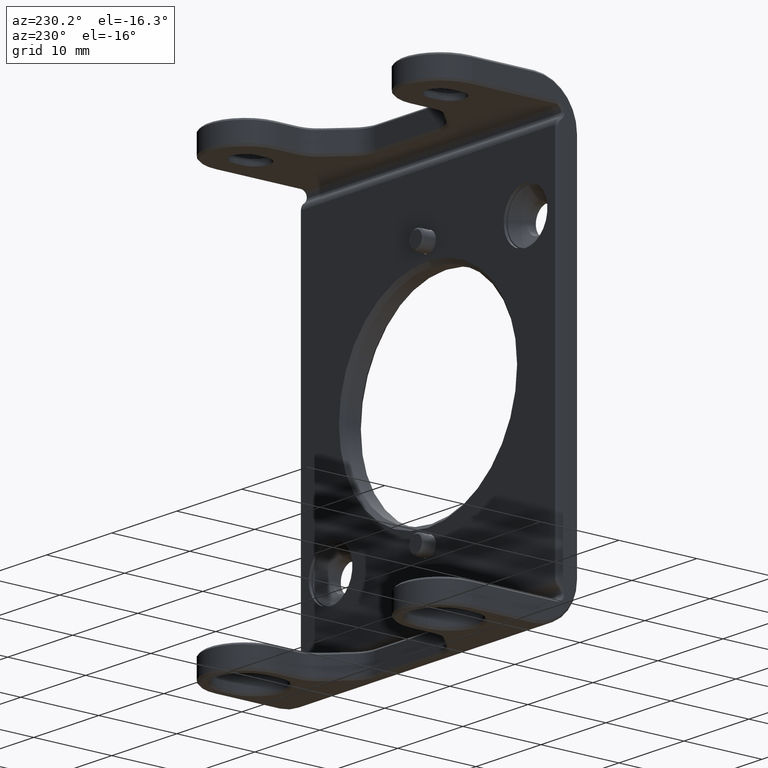
[diagram: clean part render]
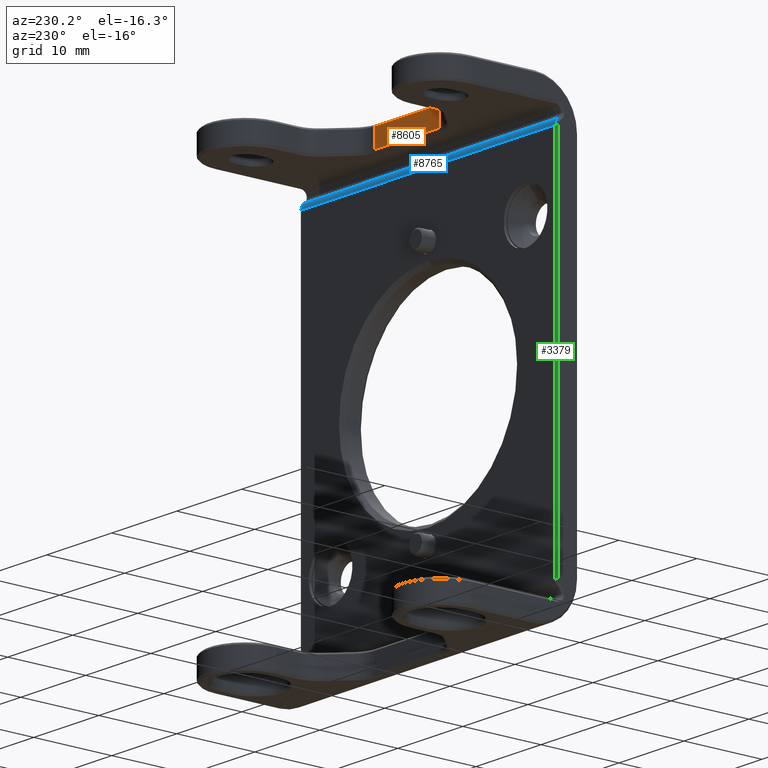
[diagram: same view with three faces highlighted in distinct colors, each labeled with its STEP entity id]
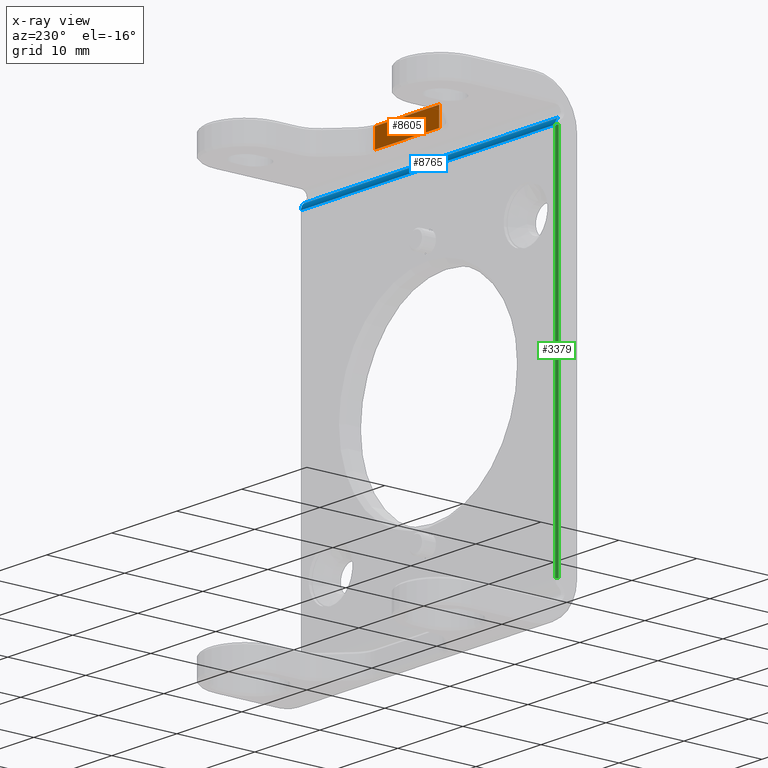
[diagram: x-ray of the same camera — body ghosted, the three highlighted faces saturated]
A machine part, auxiliary view with three faces highlighted in distinct colors.
The next image is the same camera in x-ray (body ghosted, the three faces saturated) — at least one of them is partly hidden behind the body in this view.
Their STEP definitions:

[orange] entity #8605 — the highlighted planar face has unit normal (-0, 1, 0).
#653 = CARTESIAN_POINT ( 'NONE',  ( 4.957359312880705637, 5.499999999999996447, 25.44999999999998508 ) ) ;
#764 = DIRECTION ( 'NONE',  ( 1.000000000000000000, 0.000000000000000000, 0.000000000000000000 ) ) ;
#902 = LINE ( 'NONE', #4946, #7934 ) ;
#1138 = DIRECTION ( 'NONE',  ( 0.000000000000000000, -0.000000000000000000, 1.000000000000000000 ) ) ;
#1209 = VECTOR ( 'NONE', #764, 1000.000000000000000 ) ;
#1445 = CARTESIAN_POINT ( 'NONE',  ( -6.199999999999996625, 5.499999999999996447, 28.09404424085075291 ) ) ;
#2117 = EDGE_CURVE ( 'NONE', #3785, #2198, #3284, .T. ) ;
#2198 = VERTEX_POINT ( 'NONE', #3228 ) ;
#2285 = VERTEX_POINT ( 'NONE', #8745 ) ;
#2562 = ORIENTED_EDGE ( 'NONE', *, *, #5153, .T. ) ;
#2987 = EDGE_LOOP ( 'NONE', ( #2562, #6673, #6406, #7555 ) ) ;
#3039 = EDGE_CURVE ( 'NONE', #2285, #3785, #8658, .T. ) ;
#3228 = CARTESIAN_POINT ( 'NONE',  ( -4.957359312880709190, 5.499999999999996447, 25.69999999999999929 ) ) ;
#3284 = LINE ( 'NONE', #6542, #4862 ) ;
#3504 = DIRECTION ( 'NONE',  ( 0.000000000000000000, -0.000000000000000000, 1.000000000000000000 ) ) ;
#3785 = VERTEX_POINT ( 'NONE', #4060 ) ;
#3867 = VECTOR ( 'NONE', #5380, 1000.000000000000000 ) ;
#4060 = CARTESIAN_POINT ( 'NONE',  ( 4.957359312880705637, 5.499999999999996447, 25.69999999999999929 ) ) ;
#4521 = VERTEX_POINT ( 'NONE', #8618 ) ;
#4578 = DIRECTION ( 'NONE',  ( -0.000000000000000000, 1.000000000000000000, 0.000000000000000000 ) ) ;
#4805 = LINE ( 'NONE', #1445, #1209 ) ;
#4862 = VECTOR ( 'NONE', #7207, 1000.000000000000000 ) ;
#4946 = CARTESIAN_POINT ( 'NONE',  ( -4.957359312880709190, 5.499999999999996447, 28.35000000000000142 ) ) ;
#5153 = EDGE_CURVE ( 'NONE', #2198, #4521, #902, .T. ) ;
#5380 = DIRECTION ( 'NONE',  ( -0.000000000000000000, 0.000000000000000000, -1.000000000000000000 ) ) ;
#5770 = AXIS2_PLACEMENT_3D ( 'NONE', #8696, #4578, #1138 ) ;
#6406 = ORIENTED_EDGE ( 'NONE', *, *, #3039, .T. ) ;
#6542 = CARTESIAN_POINT ( 'NONE',  ( -4.957359312880709190, 5.499999999999996447, 25.69999999999999929 ) ) ;
#6673 = ORIENTED_EDGE ( 'NONE', *, *, #7517, .T. ) ;
#6928 = FACE_OUTER_BOUND ( 'NONE', #2987, .T. ) ;
#7207 = DIRECTION ( 'NONE',  ( -1.000000000000000000, 0.000000000000000000, -0.000000000000000000 ) ) ;
#7517 = EDGE_CURVE ( 'NONE', #4521, #2285, #4805, .T. ) ;
#7555 = ORIENTED_EDGE ( 'NONE', *, *, #2117, .T. ) ;
#7790 = PLANE ( 'NONE',  #5770 ) ;
#7934 = VECTOR ( 'NONE', #3504, 1000.000000000000000 ) ;
#8605 = ADVANCED_FACE ( 'NONE', ( #6928 ), #7790, .T. ) ;
#8618 = CARTESIAN_POINT ( 'NONE',  ( -4.957359312880709190, 5.499999999999996447, 28.09404424085075647 ) ) ;
#8658 = LINE ( 'NONE', #653, #3867 ) ;
#8696 = CARTESIAN_POINT ( 'NONE',  ( -6.199999999999996625, 5.499999999999996447, -28.35000000000000142 ) ) ;
#8745 = CARTESIAN_POINT ( 'NONE',  ( 4.957359312880705637, 5.499999999999996447, 28.09404424085075291 ) ) ;

[blue] entity #8765 — the highlighted cylindrical surface (edge-blend (fillet) strip) has radius 1 mm, axis along (1, -0, -0).
#70 = DIRECTION ( 'NONE',  ( 0.000000000000000000, -2.602085213965208275E-15, 1.000000000000000000 ) ) ;
#625 = ORIENTED_EDGE ( 'NONE', *, *, #8179, .F. ) ;
#880 = EDGE_CURVE ( 'NONE', #1957, #2851, #6881, .T. ) ;
#1010 = EDGE_CURVE ( 'NONE', #1560, #2851, #4738, .T. ) ;
#1090 = CARTESIAN_POINT ( 'NONE',  ( -19.80000000000000071, 2.371428571428565224, 24.08451114501378143 ) ) ;
#1290 = CARTESIAN_POINT ( 'NONE',  ( 19.55000000000000782, 1.799999999999994715, 23.26385933836548858 ) ) ;
#1318 = DIRECTION ( 'NONE',  ( 0.000000000000000000, 0.000000000000000000, 1.000000000000000000 ) ) ;
#1560 = VERTEX_POINT ( 'NONE', #3034 ) ;
#1757 = EDGE_LOOP ( 'NONE', ( #8750, #5421, #625, #4284 ) ) ;
#1832 = DIRECTION ( 'NONE',  ( 1.000000000000000000, 0.000000000000000000, 0.000000000000000000 ) ) ;
#1957 = VERTEX_POINT ( 'NONE', #7686 ) ;
#2056 = DIRECTION ( 'NONE',  ( 0.000000000000000000, 0.000000000000000000, -1.000000000000000000 ) ) ;
#2104 = VECTOR ( 'NONE', #1832, 1000.000000000000000 ) ;
#2363 = CARTESIAN_POINT ( 'NONE',  ( -19.55000000000000782, 2.371428571428565224, 24.08451114501378143 ) ) ;
#2433 = CYLINDRICAL_SURFACE ( 'NONE', #3420, 1.000000000000000888 ) ;
#2742 = DIRECTION ( 'NONE',  ( 1.000000000000000000, -0.000000000000000000, -0.000000000000000000 ) ) ;
#2762 = CARTESIAN_POINT ( 'NONE',  ( -19.55000000000000782, 1.799999999999994715, 23.26385933836548858 ) ) ;
#2851 = VERTEX_POINT ( 'NONE', #6454 ) ;
#3034 = CARTESIAN_POINT ( 'NONE',  ( 19.54999999999999361, 2.371428571428565224, 24.08451114501378143 ) ) ;
#3075 = FACE_OUTER_BOUND ( 'NONE', #1757, .T. ) ;
#3123 = AXIS2_PLACEMENT_3D ( 'NONE', #1290, #7413, #1318 ) ;
#3390 = LINE ( 'NONE', #1090, #8625 ) ;
#3420 = AXIS2_PLACEMENT_3D ( 'NONE', #8229, #2742, #2056 ) ;
#3612 = DIRECTION ( 'NONE',  ( -1.000000000000000000, 0.000000000000000000, 0.000000000000000000 ) ) ;
#4093 = DIRECTION ( 'NONE',  ( 1.000000000000000000, 0.000000000000000000, 0.000000000000000000 ) ) ;
#4284 = ORIENTED_EDGE ( 'NONE', *, *, #1010, .T. ) ;
#4738 = CIRCLE ( 'NONE', #3123, 1.000000000000000888 ) ;
#5421 = ORIENTED_EDGE ( 'NONE', *, *, #8743, .T. ) ;
#6454 = CARTESIAN_POINT ( 'NONE',  ( 19.55000000000000782, 2.799999999999994937, 23.26385933836548858 ) ) ;
#6590 = CARTESIAN_POINT ( 'NONE',  ( 19.80000000000000071, 2.799999999999994937, 23.26385933836548858 ) ) ;
#6744 = VERTEX_POINT ( 'NONE', #2363 ) ;
#6881 = LINE ( 'NONE', #6590, #2104 ) ;
#7085 = AXIS2_PLACEMENT_3D ( 'NONE', #2762, #4093, #70 ) ;
#7413 = DIRECTION ( 'NONE',  ( -1.000000000000000000, 0.000000000000000000, 0.000000000000000000 ) ) ;
#7686 = CARTESIAN_POINT ( 'NONE',  ( -19.55000000000000782, 2.799999999999994937, 23.26385933836548858 ) ) ;
#8179 = EDGE_CURVE ( 'NONE', #1560, #6744, #3390, .T. ) ;
#8229 = CARTESIAN_POINT ( 'NONE',  ( -19.80000000000000071, 1.799999999999994715, 23.26385933836548858 ) ) ;
#8501 = CIRCLE ( 'NONE', #7085, 1.000000000000000888 ) ;
#8625 = VECTOR ( 'NONE', #3612, 1000.000000000000000 ) ;
#8743 = EDGE_CURVE ( 'NONE', #1957, #6744, #8501, .T. ) ;
#8750 = ORIENTED_EDGE ( 'NONE', *, *, #880, .F. ) ;
#8765 = ADVANCED_FACE ( 'NONE', ( #3075 ), #2433, .T. ) ;

[green] entity #3379 — the highlighted planar face has unit normal (-0.7071, 0.7071, 0).
#164 = DIRECTION ( 'NONE',  ( 0.7071067811865378028, 0.7071067811865573427, 0.000000000000000000 ) ) ;
#420 = VERTEX_POINT ( 'NONE', #3979 ) ;
#488 = LINE ( 'NONE', #6168, #1398 ) ;
#651 = VECTOR ( 'NONE', #164, 1000.000000000000000 ) ;
#736 = DIRECTION ( 'NONE',  ( 0.000000000000000000, 0.000000000000000000, -1.000000000000000000 ) ) ;
#1107 = PLANE ( 'NONE',  #7563 ) ;
#1398 = VECTOR ( 'NONE', #6830, 1000.000000000000000 ) ;
#1418 = VERTEX_POINT ( 'NONE', #1999 ) ;
#1944 = FACE_OUTER_BOUND ( 'NONE', #5945, .T. ) ;
#1957 = VERTEX_POINT ( 'NONE', #7686 ) ;
#1999 = CARTESIAN_POINT ( 'NONE',  ( -19.80000000000000071, 2.549999999999994493, -23.26385933836548503 ) ) ;
#2452 = LINE ( 'NONE', #6267, #651 ) ;
#2695 = DIRECTION ( 'NONE',  ( 0.000000000000000000, 0.000000000000000000, -1.000000000000000000 ) ) ;
#3379 = ADVANCED_FACE ( 'NONE', ( #1944 ), #1107, .T. ) ;
#3698 = CARTESIAN_POINT ( 'NONE',  ( -19.80000000000000071, 2.549999999999994493, 23.26385933836548858 ) ) ;
#3714 = DIRECTION ( 'NONE',  ( -0.7071067811865573427, 0.7071067811865378028, 0.000000000000000000 ) ) ;
#3976 = CARTESIAN_POINT ( 'NONE',  ( -19.80000000000000071, 2.549999999999994493, -23.26385933836547082 ) ) ;
#3979 = CARTESIAN_POINT ( 'NONE',  ( -19.80000000000000071, 2.549999999999994493, 23.26385933836548858 ) ) ;
#4372 = DIRECTION ( 'NONE',  ( 0.7071067811865378028, 0.7071067811865573427, 0.000000000000000000 ) ) ;
#4609 = EDGE_CURVE ( 'NONE', #6274, #1957, #488, .T. ) ;
#4779 = VECTOR ( 'NONE', #4372, 1000.000000000000000 ) ;
#4977 = ORIENTED_EDGE ( 'NONE', *, *, #5471, .F. ) ;
#5247 = ORIENTED_EDGE ( 'NONE', *, *, #6489, .F. ) ;
#5471 = EDGE_CURVE ( 'NONE', #1418, #6274, #2452, .T. ) ;
#5613 = CARTESIAN_POINT ( 'NONE',  ( -19.55000000000000782, 2.799999999999994937, 25.44999999999999929 ) ) ;
#5798 = CARTESIAN_POINT ( 'NONE',  ( -19.55000000000000782, 2.799999999999994937, -23.26385933836548503 ) ) ;
#5945 = EDGE_LOOP ( 'NONE', ( #8744, #8203, #4977, #5247 ) ) ;
#6168 = CARTESIAN_POINT ( 'NONE',  ( -19.55000000000000782, 2.799999999999994937, 23.26385933836548858 ) ) ;
#6267 = CARTESIAN_POINT ( 'NONE',  ( -19.80000000000000071, 2.549999999999994493, -23.26385933836548503 ) ) ;
#6274 = VERTEX_POINT ( 'NONE', #5798 ) ;
#6489 = EDGE_CURVE ( 'NONE', #420, #1418, #8578, .T. ) ;
#6830 = DIRECTION ( 'NONE',  ( 0.000000000000000000, 0.000000000000000000, 1.000000000000000000 ) ) ;
#7086 = VECTOR ( 'NONE', #2695, 1000.000000000000000 ) ;
#7563 = AXIS2_PLACEMENT_3D ( 'NONE', #5613, #3714, #736 ) ;
#7686 = CARTESIAN_POINT ( 'NONE',  ( -19.55000000000000782, 2.799999999999994937, 23.26385933836548858 ) ) ;
#8203 = ORIENTED_EDGE ( 'NONE', *, *, #4609, .F. ) ;
#8559 = EDGE_CURVE ( 'NONE', #420, #1957, #8628, .T. ) ;
#8578 = LINE ( 'NONE', #3976, #7086 ) ;
#8628 = LINE ( 'NONE', #3698, #4779 ) ;
#8744 = ORIENTED_EDGE ( 'NONE', *, *, #8559, .T. ) ;